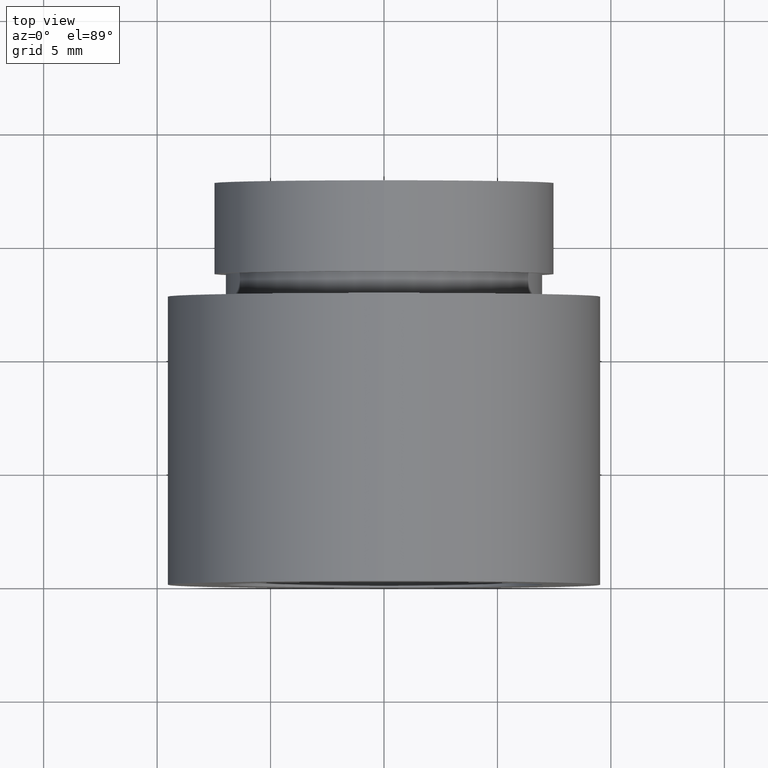
[diagram: clean part render]
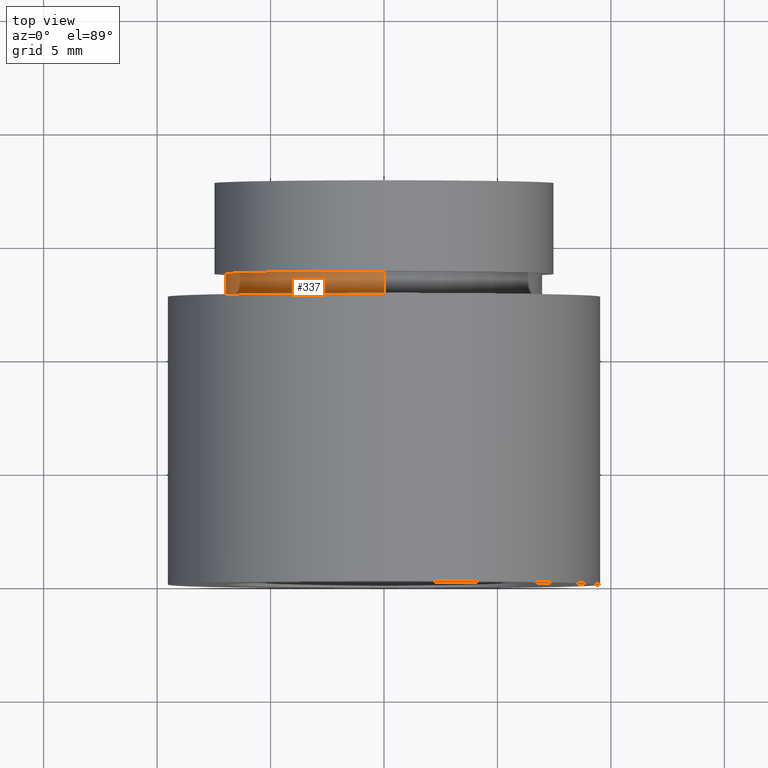
[diagram: same view with one face highlighted and labeled with its STEP entity id]
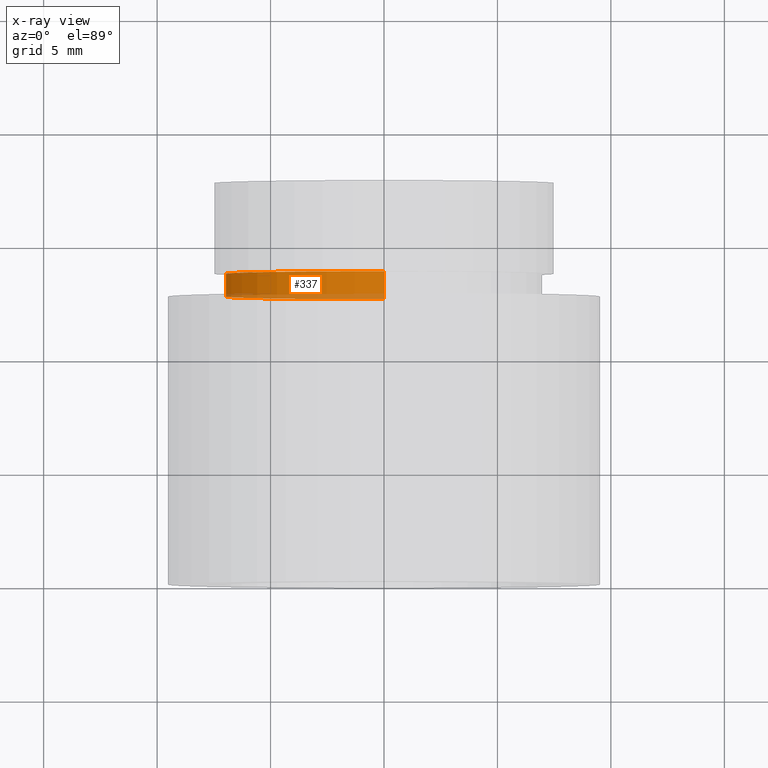
[diagram: x-ray of the same camera — body ghosted, the highlighted face saturated]
A machine part, top view. The second image highlights one B-rep face of the part: STEP entity #337.
The next image is the same camera in x-ray: the body ghosted, the highlighted face saturated — about 17% of this face is hidden behind the body in this view.
In plain terms, the highlighted cylindrical surface (partial cylindrical patch) has radius 7 mm, axis along (-0, 1, -0).
Its self-contained STEP definition (entity closure, byte-faithful):
#7 = VERTEX_POINT ( 'NONE', #77 ) ;
#13 = DIRECTION ( 'NONE',  ( 0.000000000000000000, 0.000000000000000000, 1.000000000000000000 ) ) ;
#24 = EDGE_CURVE ( 'NONE', #264, #7, #226, .T. ) ;
#41 = CARTESIAN_POINT ( 'NONE',  ( 8.572527594031494883E-16, 13.69999999999999041, -7.000000000000018652 ) ) ;
#44 = VECTOR ( 'NONE', #660, 1000.000000000000000 ) ;
#54 = DIRECTION ( 'NONE',  ( -0.000000000000000000, 1.000000000000000000, -0.000000000000000000 ) ) ;
#57 = CARTESIAN_POINT ( 'NONE',  ( 0.000000000000000000, 161.3761669434274495, 0.000000000000000000 ) ) ;
#77 = CARTESIAN_POINT ( 'NONE',  ( 0.000000000000000000, 12.69999999999998863, 7.000000000000018652 ) ) ;
#89 = ORIENTED_EDGE ( 'NONE', *, *, #24, .T. ) ;
#116 = CARTESIAN_POINT ( 'NONE',  ( 8.572527594031494883E-16, 161.3761669434274495, -7.000000000000018652 ) ) ;
#143 = AXIS2_PLACEMENT_3D ( 'NONE', #57, #54, #13 ) ;
#148 = ORIENTED_EDGE ( 'NONE', *, *, #704, .T. ) ;
#203 = DIRECTION ( 'NONE',  ( -0.000000000000000000, 1.000000000000000000, -0.000000000000000000 ) ) ;
#211 = EDGE_CURVE ( 'NONE', #612, #557, #271, .T. ) ;
#226 = CIRCLE ( 'NONE', #589, 7.000000000000018652 ) ;
#248 = EDGE_LOOP ( 'NONE', ( #668, #89, #148, #476 ) ) ;
#260 = DIRECTION ( 'NONE',  ( 0.000000000000000000, 0.000000000000000000, 1.000000000000000000 ) ) ;
#264 = VERTEX_POINT ( 'NONE', #502 ) ;
#271 = CIRCLE ( 'NONE', #372, 7.000000000000018652 ) ;
#285 = DIRECTION ( 'NONE',  ( 0.000000000000000000, 0.000000000000000000, 1.000000000000000000 ) ) ;
#324 = DIRECTION ( 'NONE',  ( -0.000000000000000000, 1.000000000000000000, -0.000000000000000000 ) ) ;
#337 = ADVANCED_FACE ( 'NONE', ( #564 ), #390, .T. ) ;
#355 = CARTESIAN_POINT ( 'NONE',  ( 0.000000000000000000, 12.69999999999998863, 0.000000000000000000 ) ) ;
#372 = AXIS2_PLACEMENT_3D ( 'NONE', #715, #203, #260 ) ;
#389 = LINE ( 'NONE', #116, #671 ) ;
#390 = CYLINDRICAL_SURFACE ( 'NONE', #143, 7.000000000000018652 ) ;
#404 = EDGE_CURVE ( 'NONE', #264, #612, #389, .T. ) ;
#476 = ORIENTED_EDGE ( 'NONE', *, *, #211, .F. ) ;
#484 = LINE ( 'NONE', #534, #44 ) ;
#502 = CARTESIAN_POINT ( 'NONE',  ( 8.572527594031494883E-16, 12.69999999999998863, -7.000000000000018652 ) ) ;
#534 = CARTESIAN_POINT ( 'NONE',  ( 0.000000000000000000, 161.3761669434274495, 7.000000000000018652 ) ) ;
#557 = VERTEX_POINT ( 'NONE', #635 ) ;
#564 = FACE_OUTER_BOUND ( 'NONE', #248, .T. ) ;
#576 = DIRECTION ( 'NONE',  ( -0.000000000000000000, 1.000000000000000000, -0.000000000000000000 ) ) ;
#589 = AXIS2_PLACEMENT_3D ( 'NONE', #355, #576, #285 ) ;
#612 = VERTEX_POINT ( 'NONE', #41 ) ;
#635 = CARTESIAN_POINT ( 'NONE',  ( 0.000000000000000000, 13.69999999999999041, 7.000000000000018652 ) ) ;
#660 = DIRECTION ( 'NONE',  ( -0.000000000000000000, 1.000000000000000000, -0.000000000000000000 ) ) ;
#668 = ORIENTED_EDGE ( 'NONE', *, *, #404, .F. ) ;
#671 = VECTOR ( 'NONE', #324, 1000.000000000000000 ) ;
#704 = EDGE_CURVE ( 'NONE', #7, #557, #484, .T. ) ;
#715 = CARTESIAN_POINT ( 'NONE',  ( 0.000000000000000000, 13.69999999999999041, 0.000000000000000000 ) ) ;